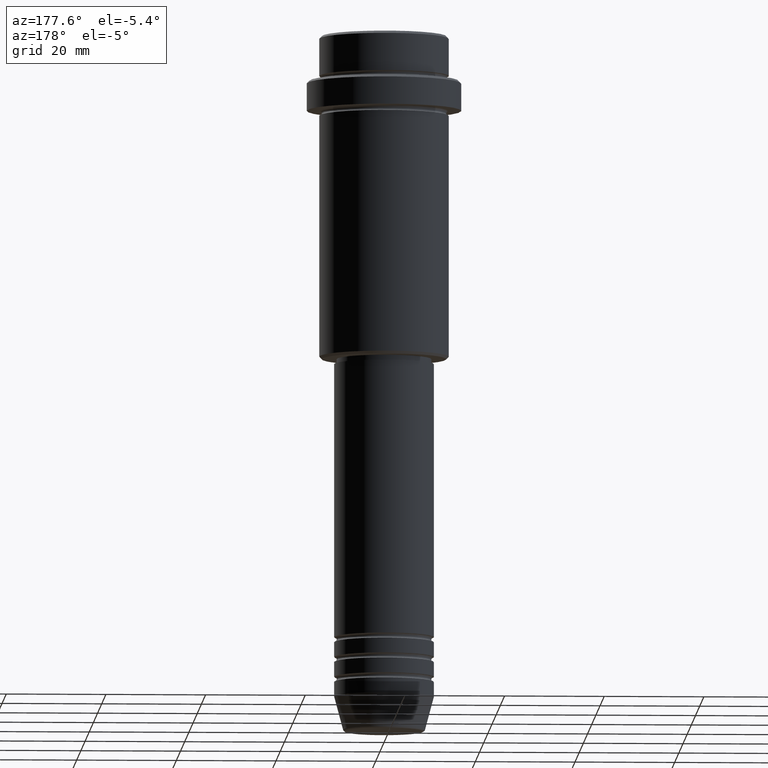
[diagram: clean part render]
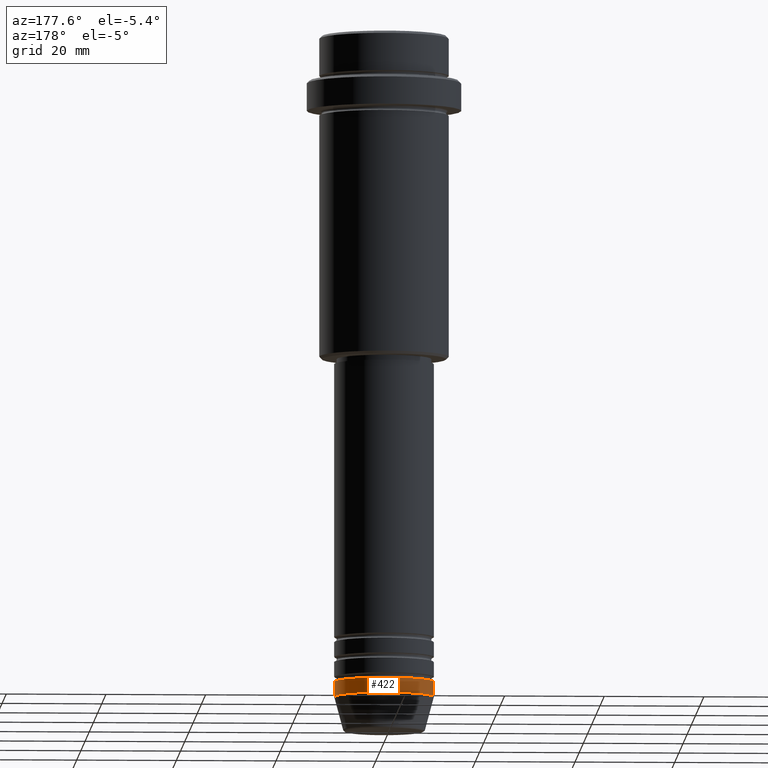
[diagram: same view with one face highlighted and labeled with its STEP entity id]
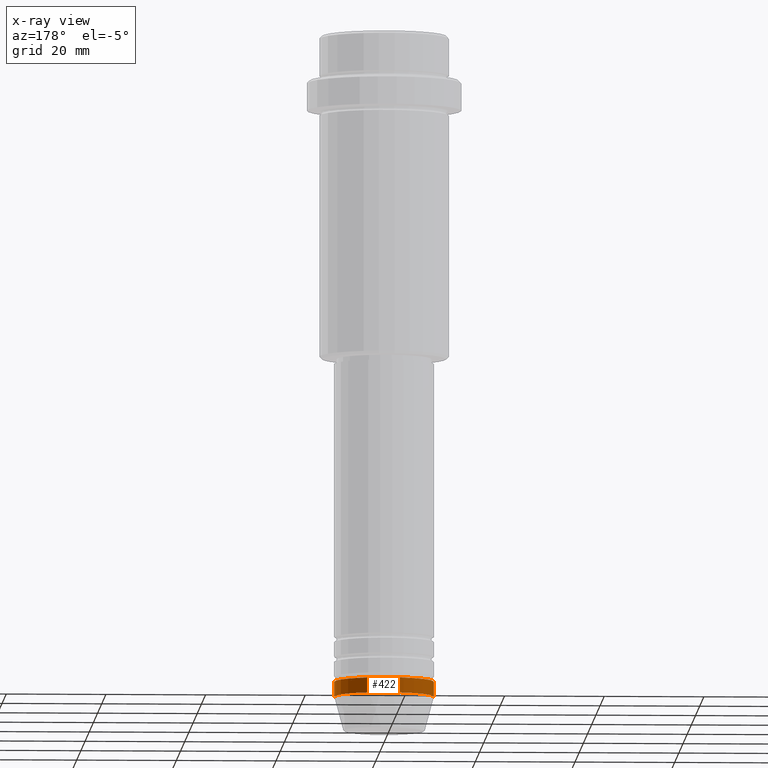
[diagram: x-ray of the same camera — body ghosted, the highlighted face saturated]
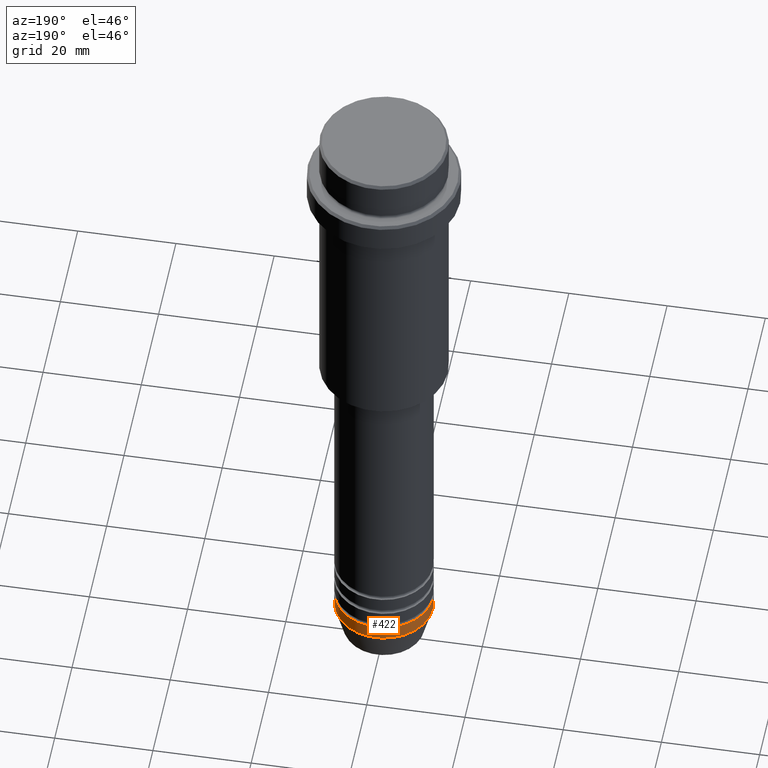
[diagram: same view with one face highlighted and labeled with its STEP entity id]
A machine part, auxiliary view. The second image highlights one B-rep face of the part: STEP entity #422.
The next image is the same camera in x-ray: the body ghosted, the highlighted face saturated — about 0% of this face is hidden behind the body in this view.
A second angle (auxiliary view) of the same face is appended — the face is thin or edge-on in the first view.
In plain terms, the highlighted cylindrical surface (partial cylindrical patch) has radius 10 mm, axis along (-0, -0, 1).
Its self-contained STEP definition (entity closure, byte-faithful):
#12 = VECTOR ( 'NONE', #1411, 1000.000000000000000 ) ;
#46 = ORIENTED_EDGE ( 'NONE', *, *, #325, .T. ) ;
#150 = AXIS2_PLACEMENT_3D ( 'NONE', #206, #1158, #413 ) ;
#171 = VERTEX_POINT ( 'NONE', #762 ) ;
#193 = DIRECTION ( 'NONE',  ( 1.000000000000000000, 0.000000000000000000, 0.000000000000000000 ) ) ;
#206 = CARTESIAN_POINT ( 'NONE',  ( 0.000000000000000000, 0.000000000000000000, -133.0000000000000000 ) ) ;
#254 = CYLINDRICAL_SURFACE ( 'NONE', #1275, 10.00000000000000000 ) ;
#293 = VECTOR ( 'NONE', #1073, 1000.000000000000000 ) ;
#324 = CARTESIAN_POINT ( 'NONE',  ( -10.00000000000000000, 1.224646799147353256E-15, 0.000000000000000000 ) ) ;
#325 = EDGE_CURVE ( 'NONE', #1107, #1325, #1192, .T. ) ;
#349 = VERTEX_POINT ( 'NONE', #1068 ) ;
#401 = AXIS2_PLACEMENT_3D ( 'NONE', #997, #797, #1228 ) ;
#413 = DIRECTION ( 'NONE',  ( 1.000000000000000000, 0.000000000000000000, 0.000000000000000000 ) ) ;
#422 = ADVANCED_FACE ( 'NONE', ( #789 ), #254, .T. ) ;
#457 = CARTESIAN_POINT ( 'NONE',  ( 0.000000000000000000, 0.000000000000000000, 0.000000000000000000 ) ) ;
#579 = ORIENTED_EDGE ( 'NONE', *, *, #1095, .F. ) ;
#658 = EDGE_LOOP ( 'NONE', ( #46, #865, #764, #579 ) ) ;
#762 = CARTESIAN_POINT ( 'NONE',  ( 10.00000000000000000, 0.000000000000000000, -130.0000000000000000 ) ) ;
#764 = ORIENTED_EDGE ( 'NONE', *, *, #927, .F. ) ;
#766 = CARTESIAN_POINT ( 'NONE',  ( 10.00000000000000000, 0.000000000000000000, 0.000000000000000000 ) ) ;
#789 = FACE_OUTER_BOUND ( 'NONE', #658, .T. ) ;
#797 = DIRECTION ( 'NONE',  ( -0.000000000000000000, -0.000000000000000000, 1.000000000000000000 ) ) ;
#865 = ORIENTED_EDGE ( 'NONE', *, *, #1167, .T. ) ;
#927 = EDGE_CURVE ( 'NONE', #171, #349, #1082, .T. ) ;
#960 = CARTESIAN_POINT ( 'NONE',  ( 10.00000000000000000, 0.000000000000000000, -133.0000000000000000 ) ) ;
#968 = LINE ( 'NONE', #324, #12 ) ;
#997 = CARTESIAN_POINT ( 'NONE',  ( 0.000000000000000000, 0.000000000000000000, -130.0000000000000000 ) ) ;
#1067 = LINE ( 'NONE', #766, #293 ) ;
#1068 = CARTESIAN_POINT ( 'NONE',  ( -10.00000000000000000, 1.224646799147353256E-15, -130.0000000000000000 ) ) ;
#1073 = DIRECTION ( 'NONE',  ( -0.000000000000000000, -0.000000000000000000, 1.000000000000000000 ) ) ;
#1082 = CIRCLE ( 'NONE', #401, 10.00000000000000000 ) ;
#1095 = EDGE_CURVE ( 'NONE', #1107, #171, #1067, .T. ) ;
#1107 = VERTEX_POINT ( 'NONE', #960 ) ;
#1158 = DIRECTION ( 'NONE',  ( -0.000000000000000000, -0.000000000000000000, 1.000000000000000000 ) ) ;
#1167 = EDGE_CURVE ( 'NONE', #1325, #349, #968, .T. ) ;
#1181 = DIRECTION ( 'NONE',  ( -0.000000000000000000, -0.000000000000000000, 1.000000000000000000 ) ) ;
#1192 = CIRCLE ( 'NONE', #150, 10.00000000000000000 ) ;
#1228 = DIRECTION ( 'NONE',  ( 1.000000000000000000, 0.000000000000000000, 0.000000000000000000 ) ) ;
#1275 = AXIS2_PLACEMENT_3D ( 'NONE', #457, #1181, #193 ) ;
#1325 = VERTEX_POINT ( 'NONE', #1335 ) ;
#1335 = CARTESIAN_POINT ( 'NONE',  ( -10.00000000000000000, 1.224646799147353256E-15, -133.0000000000000000 ) ) ;
#1411 = DIRECTION ( 'NONE',  ( -0.000000000000000000, -0.000000000000000000, 1.000000000000000000 ) ) ;